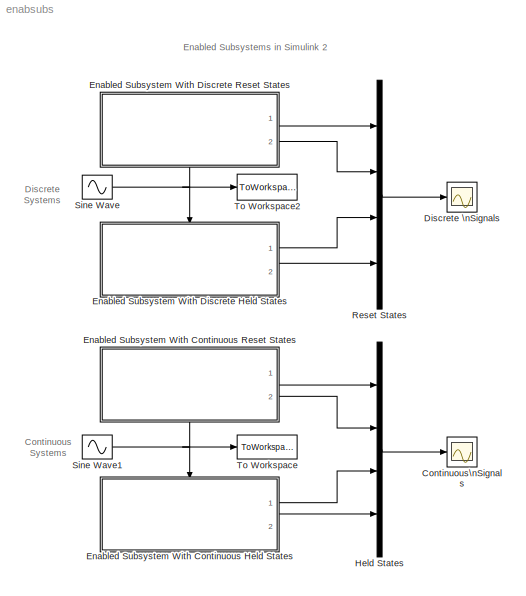
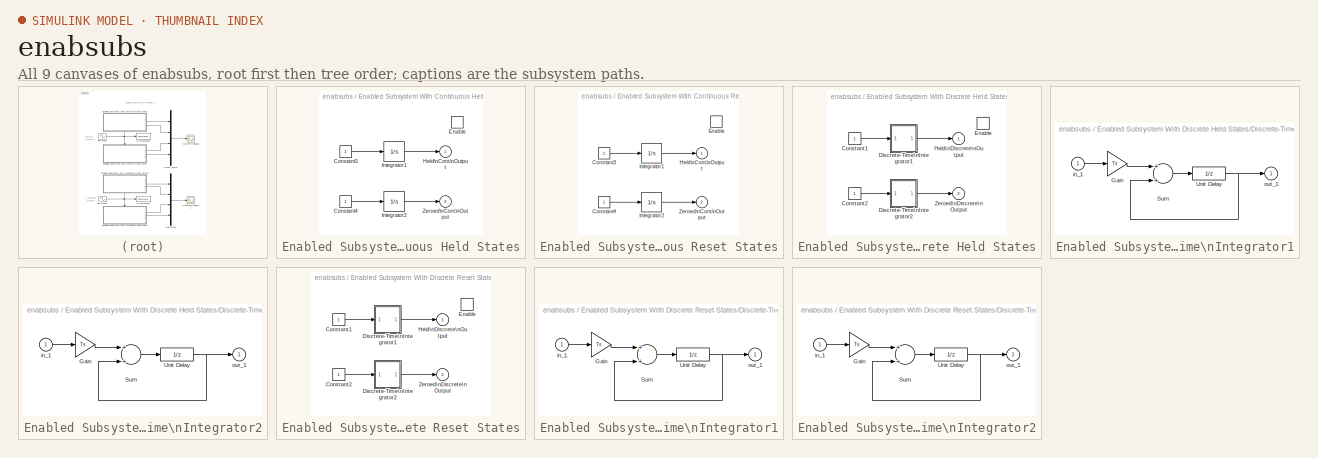
[diagram: thumbnail index - all 9 canvases of the model, root first then tree order]
MODEL enabsubs
KIND model
BLOCK [Scope] Continuous\nSignals
  DataFormat = Structure
  NumInputPorts = 1
  Ports = [1]
  SaveName = sys2
  SaveToWorkspace = on
  TickLabels = on
BLOCK [Scope] Discrete \nSignals
  DataFormat = Structure
  NumInputPorts = 1
  Ports = [1]
  SaveName = sys1
  SaveToWorkspace = on
  TickLabels = on
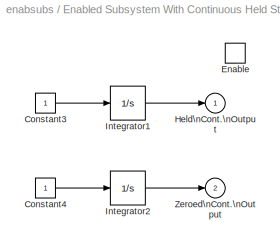
BLOCK [SubSystem] Enabled Subsystem With Continuous Held States
  MinAlgLoopOccurrences = off
  Ports = [0, 2, 1]
  PropExecContextAcrossSSBoundary = on
  RTWSystemCode = Auto
  TreatAsAtomicUnit = off
BLOCK [Constant] Enabled Subsystem With Continuous Held States/Constant3
BLOCK [Constant] Enabled Subsystem With Continuous Held States/Constant4
BLOCK [EnablePort] Enabled Subsystem With Continuous Held States/Enable
  Ports = []
BLOCK [Outport] Enabled Subsystem With Continuous Held States/Held\nCont.\nOutput
  IconDisplay = Port number
  InitialOutput = 0
BLOCK [Integrator] Enabled Subsystem With Continuous Held States/Integrator1
  Ports = [1, 1]
BLOCK [Integrator] Enabled Subsystem With Continuous Held States/Integrator2
  Ports = [1, 1]
BLOCK [Outport] Enabled Subsystem With Continuous Held States/Zeroed\nCont.\nOutput
  IconDisplay = Port number
  InitialOutput = 0
  OutputWhenDisabled = reset
  Port = 2
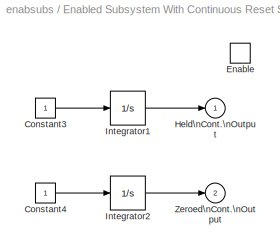
BLOCK [SubSystem] Enabled Subsystem With Continuous Reset States
  MinAlgLoopOccurrences = off
  Ports = [0, 2, 1]
  PropExecContextAcrossSSBoundary = on
  RTWSystemCode = Auto
  TreatAsAtomicUnit = off
BLOCK [Constant] Enabled Subsystem With Continuous Reset States/Constant3
BLOCK [Constant] Enabled Subsystem With Continuous Reset States/Constant4
BLOCK [EnablePort] Enabled Subsystem With Continuous Reset States/Enable
  Ports = []
  StatesWhenEnabling = reset
BLOCK [Outport] Enabled Subsystem With Continuous Reset States/Held\nCont.\nOutput
  IconDisplay = Port number
  InitialOutput = 0
BLOCK [Integrator] Enabled Subsystem With Continuous Reset States/Integrator1
  Ports = [1, 1]
BLOCK [Integrator] Enabled Subsystem With Continuous Reset States/Integrator2
  Ports = [1, 1]
BLOCK [Outport] Enabled Subsystem With Continuous Reset States/Zeroed\nCont.\nOutput
  IconDisplay = Port number
  InitialOutput = 0
  OutputWhenDisabled = reset
  Port = 2
BLOCK [SubSystem] Enabled Subsystem With Discrete Held States
  MinAlgLoopOccurrences = off
  Ports = [0, 2, 1]
  PropExecContextAcrossSSBoundary = on
  RTWSystemCode = Auto
  TreatAsAtomicUnit = off
BLOCK [Constant] Enabled Subsystem With Discrete Held States/Constant1
BLOCK [Constant] Enabled Subsystem With Discrete Held States/Constant2
BLOCK [SubSystem] Enabled Subsystem With Discrete Held States/Discrete-Time\nIntegrator1
  MaskCallbackString = |
  MaskDescription = Discrete-Time Integrator:
  MaskDisplay = dpoly(Ts,[1 -1],'z')
  MaskEnableString = on,on
  MaskHelp = Implements a zeroth order discrete\\nintegration using a gain, a sum, and\\na unit delay. Inputs may be scalar\\nor vector.\\n
  MaskIconFrame = on
  MaskIconOpaque = on
  MaskIconRotate = none
  MaskIconUnits = autoscale
  MaskInitialization = X0=@1;Ts=@2;
  MaskPromptString = Initial Condition:|Sample Time:
  MaskStyleString = edit,edit
  MaskTabNameString = ,
  MaskToolTipString = on,on
  MaskTunableValueString = on,on
  MaskType = Discrete-Time Integrator
  MaskValueString = 0|.1
  MaskVarAliasString = ,
  MaskVisibilityString = on,on
  MinAlgLoopOccurrences = off
  Ports = [1, 1]
  PropExecContextAcrossSSBoundary = on
  RTWSystemCode = Auto
  TreatAsAtomicUnit = off
BLOCK [Gain] Enabled Subsystem With Discrete Held States/Discrete-Time\nIntegrator1/Gain
  Gain = Ts
BLOCK [Sum] Enabled Subsystem With Discrete Held States/Discrete-Time\nIntegrator1/Sum
  Ports = [2, 1]
BLOCK [UnitDelay] Enabled Subsystem With Discrete Held States/Discrete-Time\nIntegrator1/Unit Delay
  SampleTime = Ts
  X0 = X0
BLOCK [Inport] Enabled Subsystem With Discrete Held States/Discrete-Time\nIntegrator1/in_1
  IconDisplay = Port number
  LatchInput = off
  Port = 1
BLOCK [Outport] Enabled Subsystem With Discrete Held States/Discrete-Time\nIntegrator1/out_1
  IconDisplay = Port number
  InitialOutput = 0
BLOCK [SubSystem] Enabled Subsystem With Discrete Held States/Discrete-Time\nIntegrator2
  MaskCallbackString = |
  MaskDescription = Discrete-Time Integrator:
  MaskDisplay = dpoly(Ts,[1 -1],'z')
  MaskEnableString = on,on
  MaskHelp = Implements a zeroth order discrete\\nintegration using a gain, a sum, and\\na unit delay. Inputs may be scalar\\nor vector.\\n
  MaskIconFrame = on
  MaskIconOpaque = on
  MaskIconRotate = none
  MaskIconUnits = autoscale
  MaskInitialization = X0=@1;Ts=@2;
  MaskPromptString = Initial Condition:|Sample Time:
  MaskStyleString = edit,edit
  MaskTabNameString = ,
  MaskToolTipString = on,on
  MaskTunableValueString = on,on
  MaskType = Discrete-Time Integrator
  MaskValueString = 0|.1
  MaskVarAliasString = ,
  MaskVisibilityString = on,on
  MinAlgLoopOccurrences = off
  Ports = [1, 1]
  PropExecContextAcrossSSBoundary = on
  RTWSystemCode = Auto
  TreatAsAtomicUnit = off
BLOCK [Gain] Enabled Subsystem With Discrete Held States/Discrete-Time\nIntegrator2/Gain
  Gain = Ts
BLOCK [Sum] Enabled Subsystem With Discrete Held States/Discrete-Time\nIntegrator2/Sum
  Ports = [2, 1]
BLOCK [UnitDelay] Enabled Subsystem With Discrete Held States/Discrete-Time\nIntegrator2/Unit Delay
  SampleTime = Ts
  X0 = X0
BLOCK [Inport] Enabled Subsystem With Discrete Held States/Discrete-Time\nIntegrator2/in_1
  IconDisplay = Port number
  LatchInput = off
  Port = 1
BLOCK [Outport] Enabled Subsystem With Discrete Held States/Discrete-Time\nIntegrator2/out_1
  IconDisplay = Port number
  InitialOutput = 0
BLOCK [EnablePort] Enabled Subsystem With Discrete Held States/Enable
  Ports = []
BLOCK [Outport] Enabled Subsystem With Discrete Held States/Held\nDiscrete\nOutput
  IconDisplay = Port number
  InitialOutput = 0
BLOCK [Outport] Enabled Subsystem With Discrete Held States/Zeroed\nDiscrete\nOutput
  IconDisplay = Port number
  InitialOutput = 0
  OutputWhenDisabled = reset
  Port = 2
BLOCK [SubSystem] Enabled Subsystem With Discrete Reset States
  MinAlgLoopOccurrences = off
  Ports = [0, 2, 1]
  PropExecContextAcrossSSBoundary = on
  RTWSystemCode = Auto
  TreatAsAtomicUnit = off
BLOCK [Constant] Enabled Subsystem With Discrete Reset States/Constant1
BLOCK [Constant] Enabled Subsystem With Discrete Reset States/Constant2
BLOCK [SubSystem] Enabled Subsystem With Discrete Reset States/Discrete-Time\nIntegrator1
  MaskCallbackString = |
  MaskDescription = Discrete-Time Integrator:
  MaskDisplay = dpoly(Ts,[1 -1],'z')
  MaskEnableString = on,on
  MaskHelp = Implements a zeroth order discrete\\nintegration using a gain, a sum, and\\na unit delay. Inputs may be scalar\\nor vector.\\n
  MaskIconFrame = on
  MaskIconOpaque = on
  MaskIconRotate = none
  MaskIconUnits = autoscale
  MaskInitialization = X0=@1;Ts=@2;
  MaskPromptString = Initial Condition:|Sample Time:
  MaskStyleString = edit,edit
  MaskTabNameString = ,
  MaskToolTipString = on,on
  MaskTunableValueString = on,on
  MaskType = Discrete-Time Integrator
  MaskValueString = 0|.1
  MaskVarAliasString = ,
  MaskVisibilityString = on,on
  MinAlgLoopOccurrences = off
  Ports = [1, 1]
  PropExecContextAcrossSSBoundary = on
  RTWSystemCode = Auto
  TreatAsAtomicUnit = off
BLOCK [Gain] Enabled Subsystem With Discrete Reset States/Discrete-Time\nIntegrator1/Gain
  Gain = Ts
BLOCK [Sum] Enabled Subsystem With Discrete Reset States/Discrete-Time\nIntegrator1/Sum
  Ports = [2, 1]
BLOCK [UnitDelay] Enabled Subsystem With Discrete Reset States/Discrete-Time\nIntegrator1/Unit Delay
  SampleTime = Ts
  X0 = X0
BLOCK [Inport] Enabled Subsystem With Discrete Reset States/Discrete-Time\nIntegrator1/in_1
  IconDisplay = Port number
  LatchInput = off
  Port = 1
BLOCK [Outport] Enabled Subsystem With Discrete Reset States/Discrete-Time\nIntegrator1/out_1
  IconDisplay = Port number
  InitialOutput = 0
BLOCK [SubSystem] Enabled Subsystem With Discrete Reset States/Discrete-Time\nIntegrator2
  MaskCallbackString = |
  MaskDescription = Discrete-Time Integrator:
  MaskDisplay = dpoly(Ts,[1 -1],'z')
  MaskEnableString = on,on
  MaskHelp = Implements a zeroth order discrete\\nintegration using a gain, a sum, and\\na unit delay. Inputs may be scalar\\nor vector.\\n
  MaskIconFrame = on
  MaskIconOpaque = on
  MaskIconRotate = none
  MaskIconUnits = autoscale
  MaskInitialization = X0=@1;Ts=@2;
  MaskPromptString = Initial Condition:|Sample Time:
  MaskStyleString = edit,edit
  MaskTabNameString = ,
  MaskToolTipString = on,on
  MaskTunableValueString = on,on
  MaskType = Discrete-Time Integrator
  MaskValueString = 0|.1
  MaskVarAliasString = ,
  MaskVisibilityString = on,on
  MinAlgLoopOccurrences = off
  Ports = [1, 1]
  PropExecContextAcrossSSBoundary = on
  RTWSystemCode = Auto
  TreatAsAtomicUnit = off
BLOCK [Gain] Enabled Subsystem With Discrete Reset States/Discrete-Time\nIntegrator2/Gain
  Gain = Ts
BLOCK [Sum] Enabled Subsystem With Discrete Reset States/Discrete-Time\nIntegrator2/Sum
  Ports = [2, 1]
BLOCK [UnitDelay] Enabled Subsystem With Discrete Reset States/Discrete-Time\nIntegrator2/Unit Delay
  SampleTime = Ts
  X0 = X0
BLOCK [Inport] Enabled Subsystem With Discrete Reset States/Discrete-Time\nIntegrator2/in_1
  IconDisplay = Port number
  LatchInput = off
  Port = 1
BLOCK [Outport] Enabled Subsystem With Discrete Reset States/Discrete-Time\nIntegrator2/out_1
  IconDisplay = Port number
  InitialOutput = 0
BLOCK [EnablePort] Enabled Subsystem With Discrete Reset States/Enable
  Ports = []
  StatesWhenEnabling = reset
BLOCK [Outport] Enabled Subsystem With Discrete Reset States/Held\nDiscrete\nOutput
  IconDisplay = Port number
  InitialOutput = 0
BLOCK [Outport] Enabled Subsystem With Discrete Reset States/Zeroed\nDiscrete\nOutput
  IconDisplay = Port number
  InitialOutput = 0
  OutputWhenDisabled = reset
  Port = 2
BLOCK [Mux] Held States
  DisplayOption = bar
  Ports = [4, 1]
BLOCK [Mux] Reset States
  DisplayOption = bar
  Ports = [4, 1]
BLOCK [Sin] Sine Wave
  Frequency = 1/2*pi
  Ports = [0, 1]
  SampleTime = 0.1
BLOCK [Sin] Sine Wave1
  Frequency = 1/2*pi
  Ports = [0, 1]
  SampleTime = 0
BLOCK [ToWorkspace] To Workspace
  MaxDataPoints = inf
  SampleTime = -1
  SaveFormat = Array
  VariableName = contEnable
BLOCK [ToWorkspace] To Workspace2
  MaxDataPoints = inf
  SampleTime = -1
  SaveFormat = Array
  VariableName = discEnable
ANNOTATION (root): Continuous\nSystems
ANNOTATION (root): Discrete\nSystems
ANNOTATION (root): Enabled Subsystems in Simulink 2
LINE Enabled Subsystem With Continuous Held States/Constant3:1 -> Enabled Subsystem With Continuous Held States/Integrator1:1
LINE Enabled Subsystem With Continuous Held States/Constant4:1 -> Enabled Subsystem With Continuous Held States/Integrator2:1
LINE Enabled Subsystem With Continuous Held States/Integrator1:1 -> Enabled Subsystem With Continuous Held States/Held\nCont.\nOutput:1
LINE Enabled Subsystem With Continuous Held States/Integrator2:1 -> Enabled Subsystem With Continuous Held States/Zeroed\nCont.\nOutput:1
LINE Enabled Subsystem With Continuous Held States:1 -> Held States:3
LINE Enabled Subsystem With Continuous Held States:2 -> Held States:4
LINE Enabled Subsystem With Continuous Reset States/Constant3:1 -> Enabled Subsystem With Continuous Reset States/Integrator1:1
LINE Enabled Subsystem With Continuous Reset States/Constant4:1 -> Enabled Subsystem With Continuous Reset States/Integrator2:1
LINE Enabled Subsystem With Continuous Reset States/Integrator1:1 -> Enabled Subsystem With Continuous Reset States/Held\nCont.\nOutput:1
LINE Enabled Subsystem With Continuous Reset States/Integrator2:1 -> Enabled Subsystem With Continuous Reset States/Zeroed\nCont.\nOutput:1
LINE Enabled Subsystem With Continuous Reset States:1 -> Held States:1
LINE Enabled Subsystem With Continuous Reset States:2 -> Held States:2
LINE Enabled Subsystem With Discrete Held States/Constant1:1 -> Enabled Subsystem With Discrete Held States/Discrete-Time\nIntegrator1:1
LINE Enabled Subsystem With Discrete Held States/Constant2:1 -> Enabled Subsystem With Discrete Held States/Discrete-Time\nIntegrator2:1
LINE Enabled Subsystem With Discrete Held States/Discrete-Time\nIntegrator1/Gain:1 -> Enabled Subsystem With Discrete Held States/Discrete-Time\nIntegrator1/Sum:1
LINE Enabled Subsystem With Discrete Held States/Discrete-Time\nIntegrator1/Sum:1 -> Enabled Subsystem With Discrete Held States/Discrete-Time\nIntegrator1/Unit Delay:1
NET Enabled Subsystem With Discrete Held States/Discrete-Time\nIntegrator1/Unit Delay:1 -> Enabled Subsystem With Discrete Held States/Discrete-Time\nIntegrator1/Sum:2, Enabled Subsystem With Discrete Held States/Discrete-Time\nIntegrator1/out_1:1
LINE Enabled Subsystem With Discrete Held States/Discrete-Time\nIntegrator1/in_1:1 -> Enabled Subsystem With Discrete Held States/Discrete-Time\nIntegrator1/Gain:1
LINE Enabled Subsystem With Discrete Held States/Discrete-Time\nIntegrator1:1 -> Enabled Subsystem With Discrete Held States/Held\nDiscrete\nOutput:1
LINE Enabled Subsystem With Discrete Held States/Discrete-Time\nIntegrator2/Gain:1 -> Enabled Subsystem With Discrete Held States/Discrete-Time\nIntegrator2/Sum:1
LINE Enabled Subsystem With Discrete Held States/Discrete-Time\nIntegrator2/Sum:1 -> Enabled Subsystem With Discrete Held States/Discrete-Time\nIntegrator2/Unit Delay:1
NET Enabled Subsystem With Discrete Held States/Discrete-Time\nIntegrator2/Unit Delay:1 -> Enabled Subsystem With Discrete Held States/Discrete-Time\nIntegrator2/Sum:2, Enabled Subsystem With Discrete Held States/Discrete-Time\nIntegrator2/out_1:1
LINE Enabled Subsystem With Discrete Held States/Discrete-Time\nIntegrator2/in_1:1 -> Enabled Subsystem With Discrete Held States/Discrete-Time\nIntegrator2/Gain:1
LINE Enabled Subsystem With Discrete Held States/Discrete-Time\nIntegrator2:1 -> Enabled Subsystem With Discrete Held States/Zeroed\nDiscrete\nOutput:1
LINE Enabled Subsystem With Discrete Held States:1 -> Reset States:3
LINE Enabled Subsystem With Discrete Held States:2 -> Reset States:4
LINE Enabled Subsystem With Discrete Reset States/Constant1:1 -> Enabled Subsystem With Discrete Reset States/Discrete-Time\nIntegrator1:1
LINE Enabled Subsystem With Discrete Reset States/Constant2:1 -> Enabled Subsystem With Discrete Reset States/Discrete-Time\nIntegrator2:1
LINE Enabled Subsystem With Discrete Reset States/Discrete-Time\nIntegrator1/Gain:1 -> Enabled Subsystem With Discrete Reset States/Discrete-Time\nIntegrator1/Sum:1
LINE Enabled Subsystem With Discrete Reset States/Discrete-Time\nIntegrator1/Sum:1 -> Enabled Subsystem With Discrete Reset States/Discrete-Time\nIntegrator1/Unit Delay:1
NET Enabled Subsystem With Discrete Reset States/Discrete-Time\nIntegrator1/Unit Delay:1 -> Enabled Subsystem With Discrete Reset States/Discrete-Time\nIntegrator1/Sum:2, Enabled Subsystem With Discrete Reset States/Discrete-Time\nIntegrator1/out_1:1
LINE Enabled Subsystem With Discrete Reset States/Discrete-Time\nIntegrator1/in_1:1 -> Enabled Subsystem With Discrete Reset States/Discrete-Time\nIntegrator1/Gain:1
LINE Enabled Subsystem With Discrete Reset States/Discrete-Time\nIntegrator1:1 -> Enabled Subsystem With Discrete Reset States/Held\nDiscrete\nOutput:1
LINE Enabled Subsystem With Discrete Reset States/Discrete-Time\nIntegrator2/Gain:1 -> Enabled Subsystem With Discrete Reset States/Discrete-Time\nIntegrator2/Sum:1
LINE Enabled Subsystem With Discrete Reset States/Discrete-Time\nIntegrator2/Sum:1 -> Enabled Subsystem With Discrete Reset States/Discrete-Time\nIntegrator2/Unit Delay:1
NET Enabled Subsystem With Discrete Reset States/Discrete-Time\nIntegrator2/Unit Delay:1 -> Enabled Subsystem With Discrete Reset States/Discrete-Time\nIntegrator2/Sum:2, Enabled Subsystem With Discrete Reset States/Discrete-Time\nIntegrator2/out_1:1
LINE Enabled Subsystem With Discrete Reset States/Discrete-Time\nIntegrator2/in_1:1 -> Enabled Subsystem With Discrete Reset States/Discrete-Time\nIntegrator2/Gain:1
LINE Enabled Subsystem With Discrete Reset States/Discrete-Time\nIntegrator2:1 -> Enabled Subsystem With Discrete Reset States/Zeroed\nDiscrete\nOutput:1
LINE Enabled Subsystem With Discrete Reset States:1 -> Reset States:1
LINE Enabled Subsystem With Discrete Reset States:2 -> Reset States:2
LINE Held States:1 -> Continuous\nSignals:1
LINE Reset States:1 -> Discrete \nSignals:1
NET Sine Wave1:1 -> Enabled Subsystem With Continuous Held States:enable, Enabled Subsystem With Continuous Reset States:enable, To Workspace:1
NET Sine Wave:1 -> Enabled Subsystem With Discrete Held States:enable, Enabled Subsystem With Discrete Reset States:enable, To Workspace2:1
note: NET lines group one-source signal fan-out (src -> all destinations, sorted); 1:1 wires keep LINE
